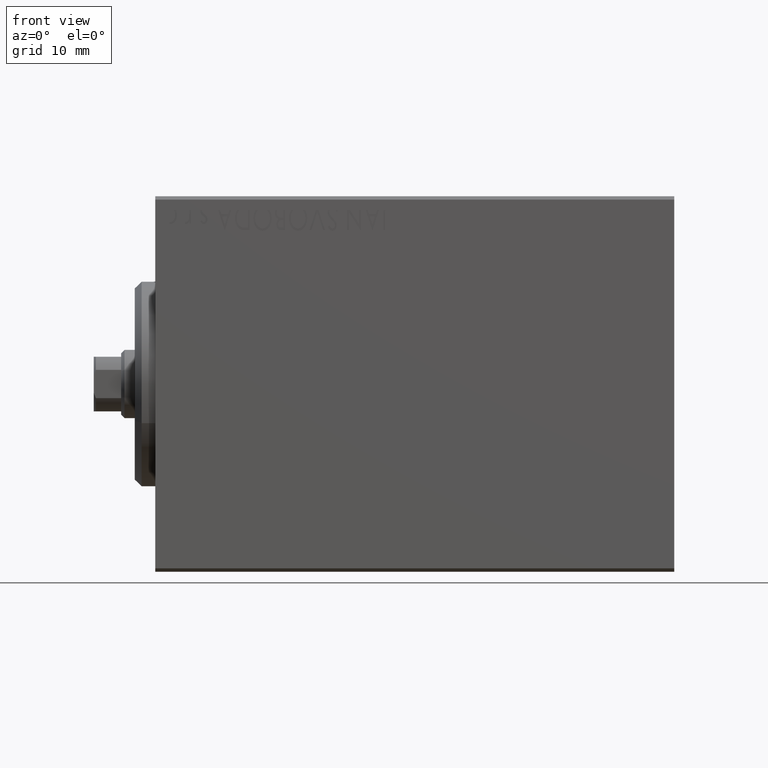
[diagram: clean part render]
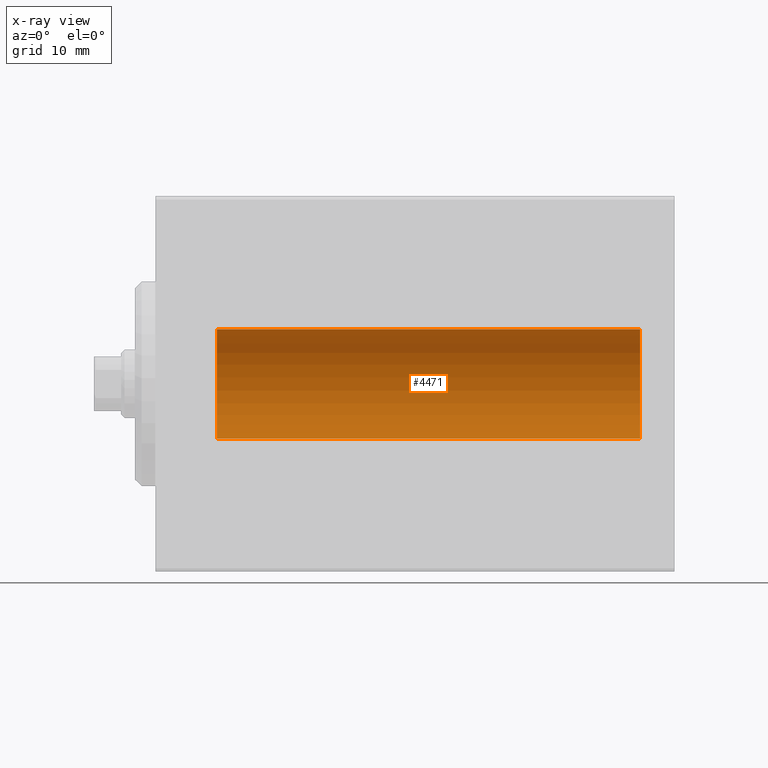
[diagram: x-ray — body ghosted, one internal face saturated and labeled with its STEP entity id]
A machine part, front view, then the same camera in x-ray: the body is ghosted and one INTERNAL B-rep face — a face not visible from any outside direction — is saturated and labeled: STEP entity #4471.
In plain terms, the highlighted cylindrical surface (partial cylindrical patch) has radius 8 mm, axis along (-1, -0, -0).
Its self-contained STEP definition (entity closure, byte-faithful):
#332 = CIRCLE ( 'NONE', #32938, 7.999999999999998224 ) ;
#1243 = CARTESIAN_POINT ( 'NONE',  ( 9.000000000000001776, 0.000000000000000000, 0.000000000000000000 ) ) ;
#1491 = DIRECTION ( 'NONE',  ( -1.000000000000000000, 0.000000000000000000, 0.000000000000000000 ) ) ;
#1726 = LINE ( 'NONE', #12161, #10752 ) ;
#1991 = ORIENTED_EDGE ( 'NONE', *, *, #4909, .T. ) ;
#2375 = DIRECTION ( 'NONE',  ( 0.000000000000000000, 0.000000000000000000, 1.000000000000000000 ) ) ;
#2758 = VERTEX_POINT ( 'NONE', #11536 ) ;
#3595 = ORIENTED_EDGE ( 'NONE', *, *, #6557, .F. ) ;
#4471 = ADVANCED_FACE ( 'NONE', ( #41883 ), #31462, .F. ) ;
#4909 = EDGE_CURVE ( 'NONE', #26313, #26849, #23634, .T. ) ;
#5502 = DIRECTION ( 'NONE',  ( -1.000000000000000000, -0.000000000000000000, -0.000000000000000000 ) ) ;
#6557 = EDGE_CURVE ( 'NONE', #26313, #40709, #42513, .T. ) ;
#7161 = CARTESIAN_POINT ( 'NONE',  ( 71.00000000000000000, 9.797174393178823685E-16, -7.999999999999998224 ) ) ;
#8528 = AXIS2_PLACEMENT_3D ( 'NONE', #14820, #11495, #2375 ) ;
#10752 = VECTOR ( 'NONE', #5502, 1000.000000000000000 ) ;
#11495 = DIRECTION ( 'NONE',  ( -1.000000000000000000, -0.000000000000000000, -0.000000000000000000 ) ) ;
#11536 = CARTESIAN_POINT ( 'NONE',  ( 9.000000000000001776, 9.797174393178823685E-16, -7.999999999999998224 ) ) ;
#12161 = CARTESIAN_POINT ( 'NONE',  ( 71.00000000000000000, 9.797174393178823685E-16, -7.999999999999998224 ) ) ;
#14820 = CARTESIAN_POINT ( 'NONE',  ( 71.00000000000000000, 0.000000000000000000, 0.000000000000000000 ) ) ;
#15941 = ORIENTED_EDGE ( 'NONE', *, *, #42315, .F. ) ;
#16154 = ORIENTED_EDGE ( 'NONE', *, *, #25595, .T. ) ;
#16290 = CARTESIAN_POINT ( 'NONE',  ( 71.00000000000000000, 0.000000000000000000, 7.999999999999998224 ) ) ;
#20790 = CARTESIAN_POINT ( 'NONE',  ( 71.00000000000000000, 0.000000000000000000, 7.999999999999998224 ) ) ;
#23634 = LINE ( 'NONE', #16290, #24750 ) ;
#24750 = VECTOR ( 'NONE', #43808, 1000.000000000000000 ) ;
#24781 = DIRECTION ( 'NONE',  ( -1.000000000000000000, 0.000000000000000000, 0.000000000000000000 ) ) ;
#25037 = DIRECTION ( 'NONE',  ( 0.000000000000000000, 0.000000000000000000, 1.000000000000000000 ) ) ;
#25595 = EDGE_CURVE ( 'NONE', #26849, #2758, #332, .T. ) ;
#25917 = CARTESIAN_POINT ( 'NONE',  ( 71.00000000000000000, 0.000000000000000000, 0.000000000000000000 ) ) ;
#26313 = VERTEX_POINT ( 'NONE', #20790 ) ;
#26849 = VERTEX_POINT ( 'NONE', #29122 ) ;
#29122 = CARTESIAN_POINT ( 'NONE',  ( 9.000000000000001776, 0.000000000000000000, 7.999999999999998224 ) ) ;
#31462 = CYLINDRICAL_SURFACE ( 'NONE', #8528, 7.999999999999998224 ) ;
#32576 = AXIS2_PLACEMENT_3D ( 'NONE', #25917, #1491, #25037 ) ;
#32938 = AXIS2_PLACEMENT_3D ( 'NONE', #1243, #24781, #34968 ) ;
#34968 = DIRECTION ( 'NONE',  ( 0.000000000000000000, 0.000000000000000000, 1.000000000000000000 ) ) ;
#35055 = EDGE_LOOP ( 'NONE', ( #15941, #3595, #1991, #16154 ) ) ;
#40709 = VERTEX_POINT ( 'NONE', #7161 ) ;
#41883 = FACE_OUTER_BOUND ( 'NONE', #35055, .T. ) ;
#42315 = EDGE_CURVE ( 'NONE', #40709, #2758, #1726, .T. ) ;
#42513 = CIRCLE ( 'NONE', #32576, 7.999999999999998224 ) ;
#43808 = DIRECTION ( 'NONE',  ( -1.000000000000000000, -0.000000000000000000, -0.000000000000000000 ) ) ;